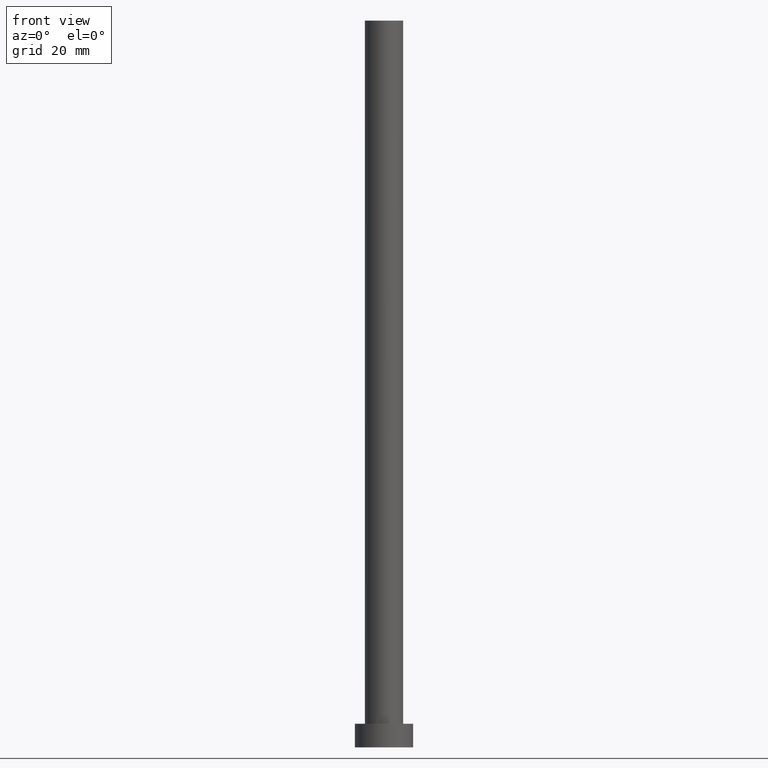
[diagram: clean part render]
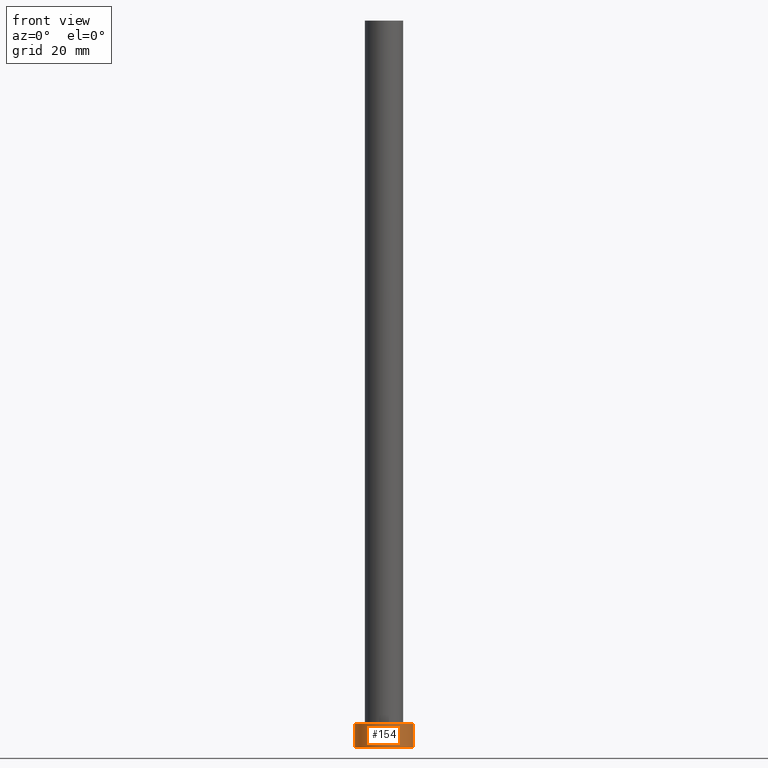
[diagram: same view with one face highlighted and labeled with its STEP entity id]
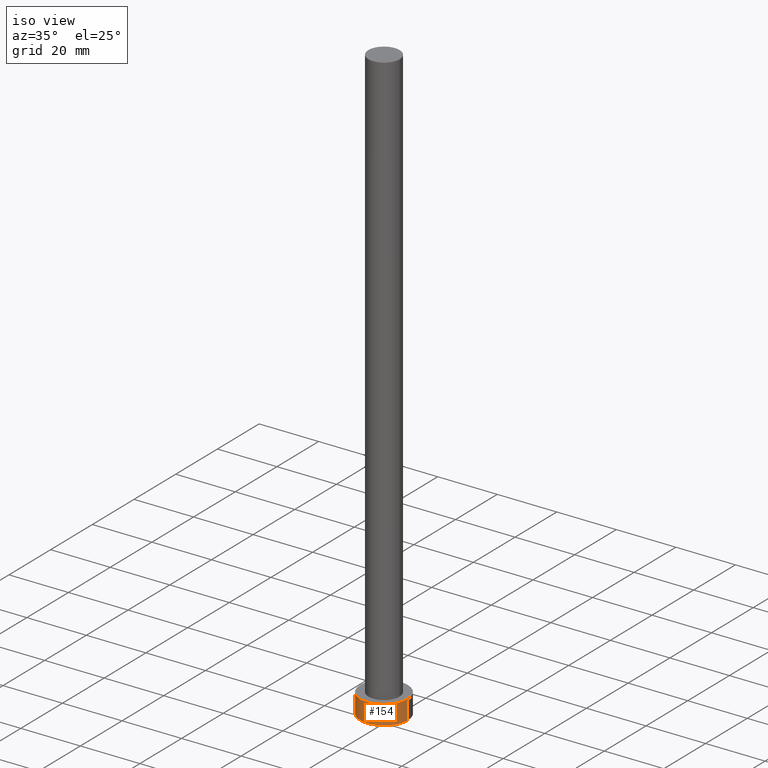
[diagram: same view with one face highlighted and labeled with its STEP entity id]
A machine part, front view. The second image highlights one B-rep face of the part: STEP entity #154.
A second angle (iso view) of the same face is appended — the face is thin or edge-on in the first view.
In plain terms, the highlighted cylindrical surface (edge-blend (fillet) strip) has radius 8 mm, axis along (-0, -0, -1).
Its self-contained STEP definition (entity closure, byte-faithful):
#8 = VERTEX_POINT ( 'NONE', #36 ) ;
#9 = CIRCLE ( 'NONE', #59, 8.000000000000000000 ) ;
#33 = AXIS2_PLACEMENT_3D ( 'NONE', #70, #255, #233 ) ;
#36 = CARTESIAN_POINT ( 'NONE',  ( 8.000000000000000000, 9.797174393178823685E-16, 6.500000000000000000 ) ) ;
#38 = ORIENTED_EDGE ( 'NONE', *, *, #162, .F. ) ;
#46 = ORIENTED_EDGE ( 'NONE', *, *, #160, .T. ) ;
#49 = CARTESIAN_POINT ( 'NONE',  ( 8.000000000000000000, 9.797174393178823685E-16, 0.000000000000000000 ) ) ;
#53 = CIRCLE ( 'NONE', #193, 8.000000000000000000 ) ;
#59 = AXIS2_PLACEMENT_3D ( 'NONE', #171, #132, #69 ) ;
#65 = ORIENTED_EDGE ( 'NONE', *, *, #74, .F. ) ;
#66 = CARTESIAN_POINT ( 'NONE',  ( -8.000000000000000000, 0.000000000000000000, 6.500000000000000000 ) ) ;
#69 = DIRECTION ( 'NONE',  ( 1.000000000000000000, 0.000000000000000000, 0.000000000000000000 ) ) ;
#70 = CARTESIAN_POINT ( 'NONE',  ( 0.000000000000000000, 0.000000000000000000, 6.500000000000000000 ) ) ;
#72 = CARTESIAN_POINT ( 'NONE',  ( -8.000000000000000000, 0.000000000000000000, 6.500000000000000000 ) ) ;
#74 = EDGE_CURVE ( 'NONE', #78, #8, #53, .T. ) ;
#78 = VERTEX_POINT ( 'NONE', #66 ) ;
#89 = DIRECTION ( 'NONE',  ( -0.000000000000000000, -0.000000000000000000, -1.000000000000000000 ) ) ;
#103 = DIRECTION ( 'NONE',  ( 1.000000000000000000, 0.000000000000000000, 0.000000000000000000 ) ) ;
#108 = CYLINDRICAL_SURFACE ( 'NONE', #33, 8.000000000000000000 ) ;
#110 = EDGE_CURVE ( 'NONE', #78, #144, #157, .T. ) ;
#125 = VECTOR ( 'NONE', #228, 1000.000000000000000 ) ;
#129 = LINE ( 'NONE', #211, #125 ) ;
#131 = CARTESIAN_POINT ( 'NONE',  ( -8.000000000000000000, 0.000000000000000000, 0.000000000000000000 ) ) ;
#132 = DIRECTION ( 'NONE',  ( 0.000000000000000000, 0.000000000000000000, 1.000000000000000000 ) ) ;
#144 = VERTEX_POINT ( 'NONE', #131 ) ;
#154 = ADVANCED_FACE ( 'NONE', ( #252 ), #108, .T. ) ;
#157 = LINE ( 'NONE', #72, #245 ) ;
#160 = EDGE_CURVE ( 'NONE', #144, #164, #9, .T. ) ;
#162 = EDGE_CURVE ( 'NONE', #8, #164, #129, .T. ) ;
#164 = VERTEX_POINT ( 'NONE', #49 ) ;
#171 = CARTESIAN_POINT ( 'NONE',  ( 0.000000000000000000, 0.000000000000000000, 0.000000000000000000 ) ) ;
#187 = CARTESIAN_POINT ( 'NONE',  ( 0.000000000000000000, 0.000000000000000000, 6.500000000000000000 ) ) ;
#193 = AXIS2_PLACEMENT_3D ( 'NONE', #187, #246, #103 ) ;
#206 = EDGE_LOOP ( 'NONE', ( #38, #65, #221, #46 ) ) ;
#211 = CARTESIAN_POINT ( 'NONE',  ( 8.000000000000000000, 9.797174393178823685E-16, 6.500000000000000000 ) ) ;
#221 = ORIENTED_EDGE ( 'NONE', *, *, #110, .T. ) ;
#228 = DIRECTION ( 'NONE',  ( -0.000000000000000000, -0.000000000000000000, -1.000000000000000000 ) ) ;
#233 = DIRECTION ( 'NONE',  ( -1.000000000000000000, 0.000000000000000000, 0.000000000000000000 ) ) ;
#245 = VECTOR ( 'NONE', #89, 1000.000000000000000 ) ;
#246 = DIRECTION ( 'NONE',  ( 0.000000000000000000, 0.000000000000000000, 1.000000000000000000 ) ) ;
#252 = FACE_OUTER_BOUND ( 'NONE', #206, .T. ) ;
#255 = DIRECTION ( 'NONE',  ( -0.000000000000000000, -0.000000000000000000, -1.000000000000000000 ) ) ;